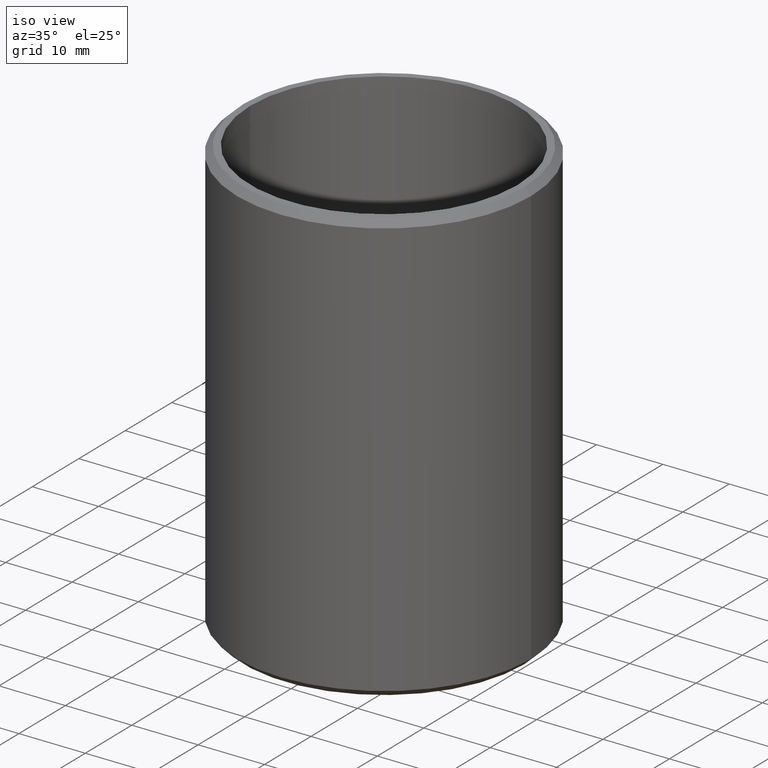
[diagram: clean part render]
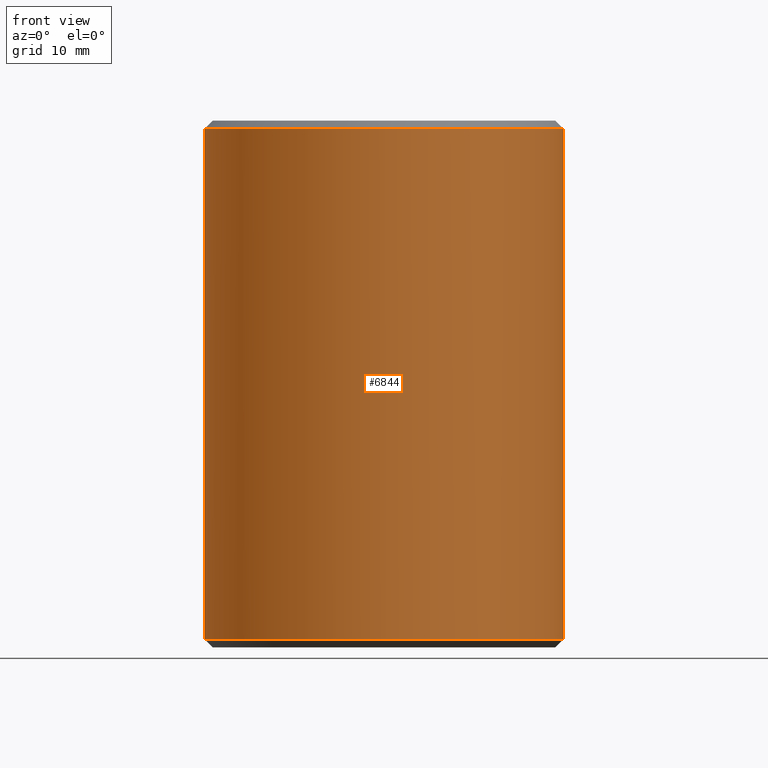
[diagram: tour spotlight — one face highlighted and labeled with its STEP entity id]
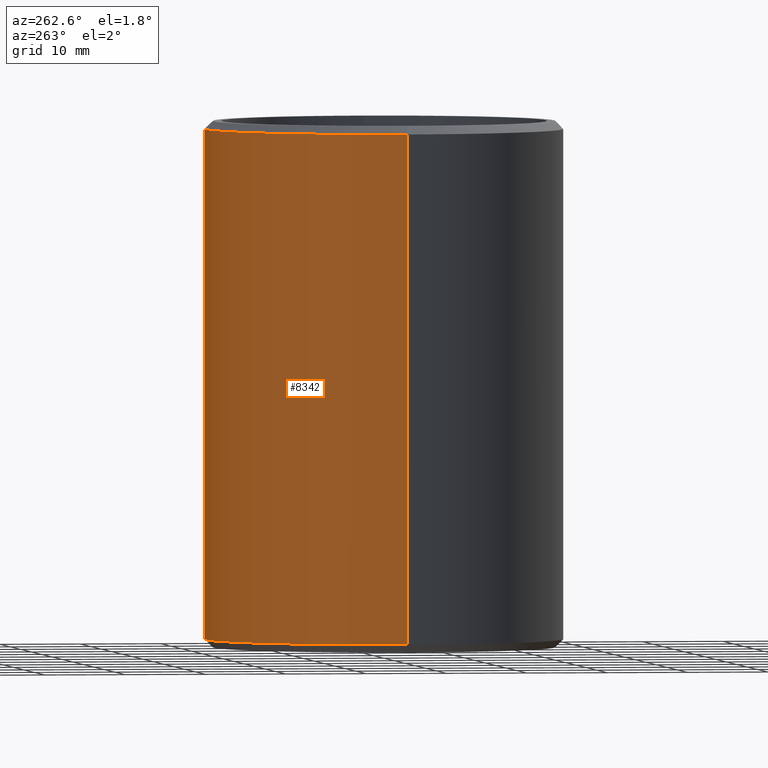
[diagram: tour spotlight — one face highlighted and labeled with its STEP entity id]
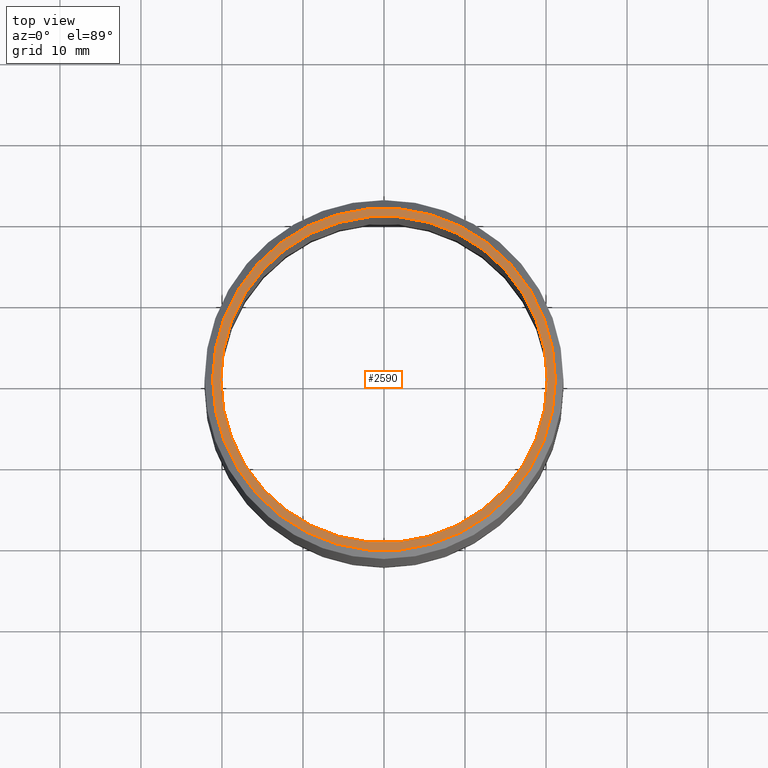
[diagram: tour spotlight — one face highlighted and labeled with its STEP entity id]
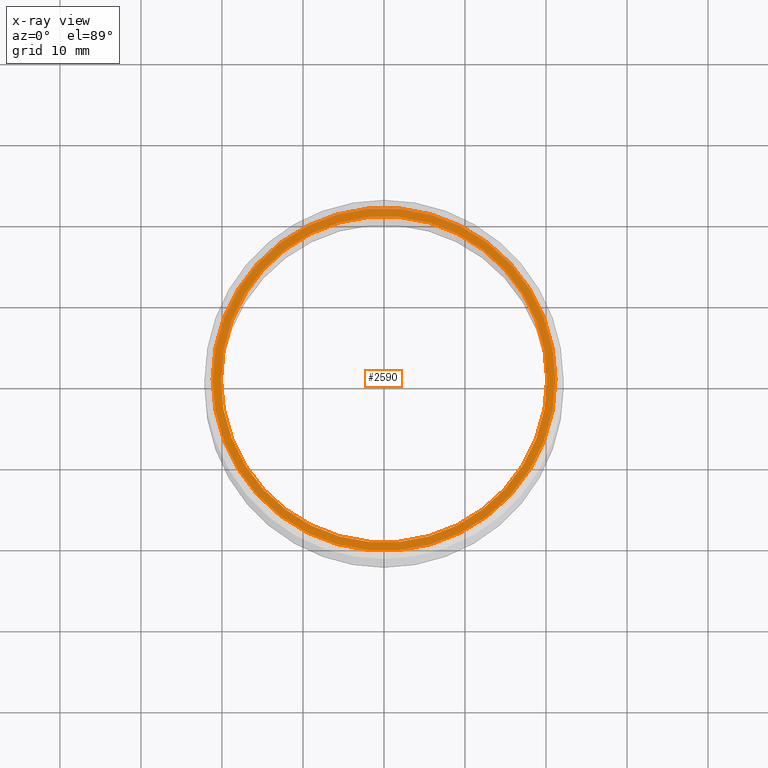
[diagram: x-ray of the same camera — body ghosted, this tour face saturated]
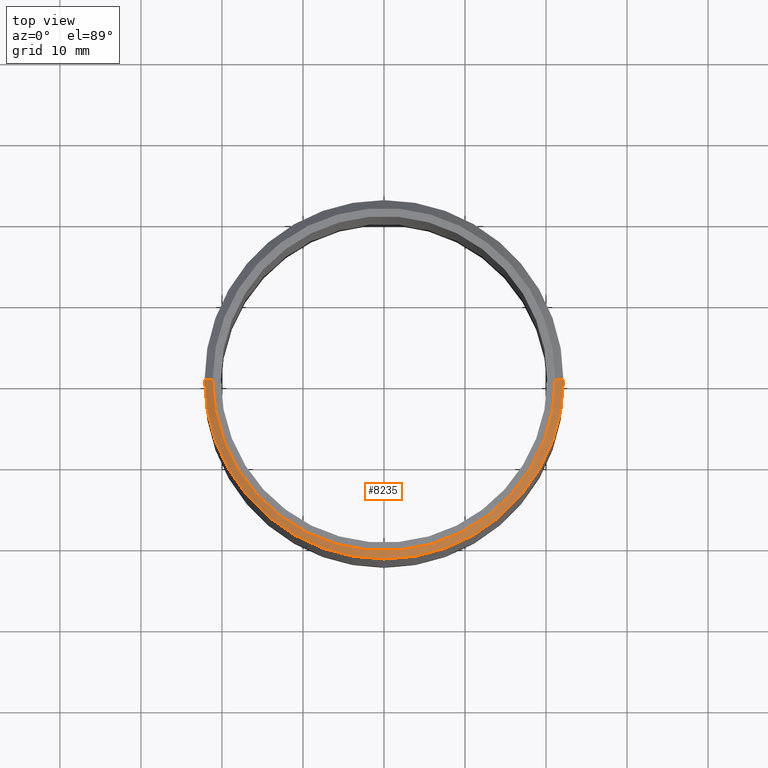
[diagram: tour spotlight — one face highlighted and labeled with its STEP entity id]
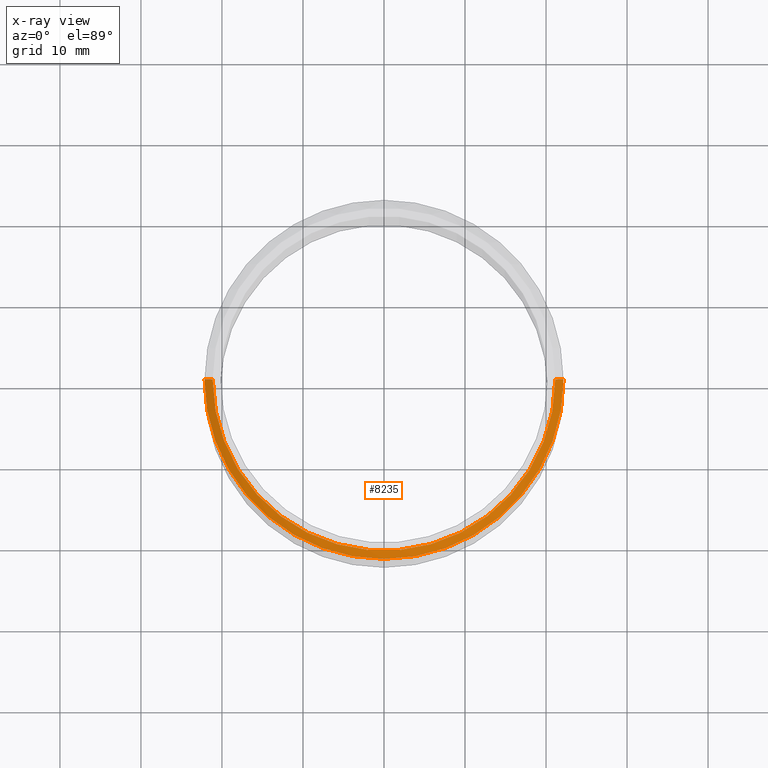
[diagram: x-ray of the same camera — body ghosted, this tour face saturated]
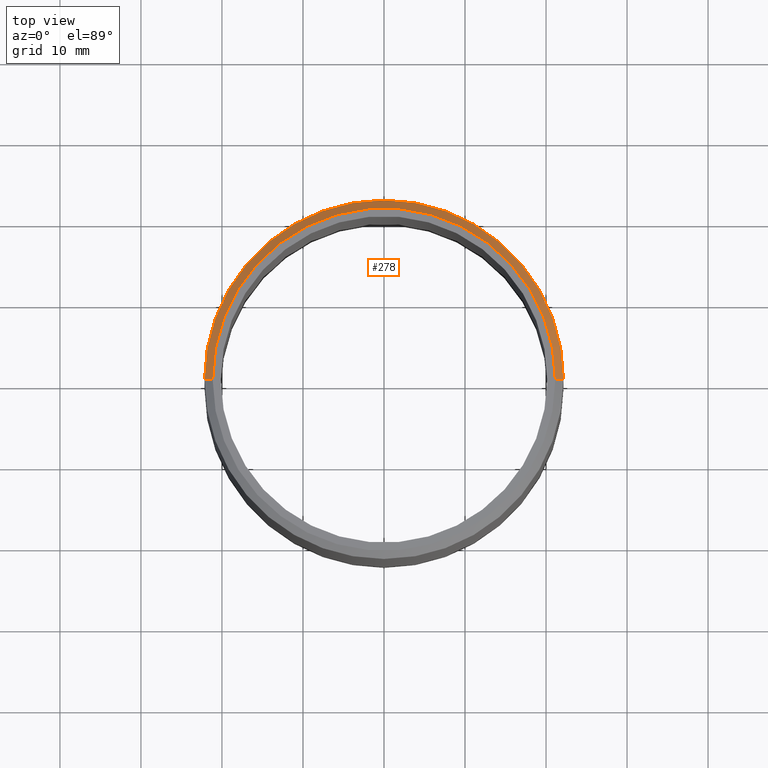
[diagram: tour spotlight — one face highlighted and labeled with its STEP entity id]
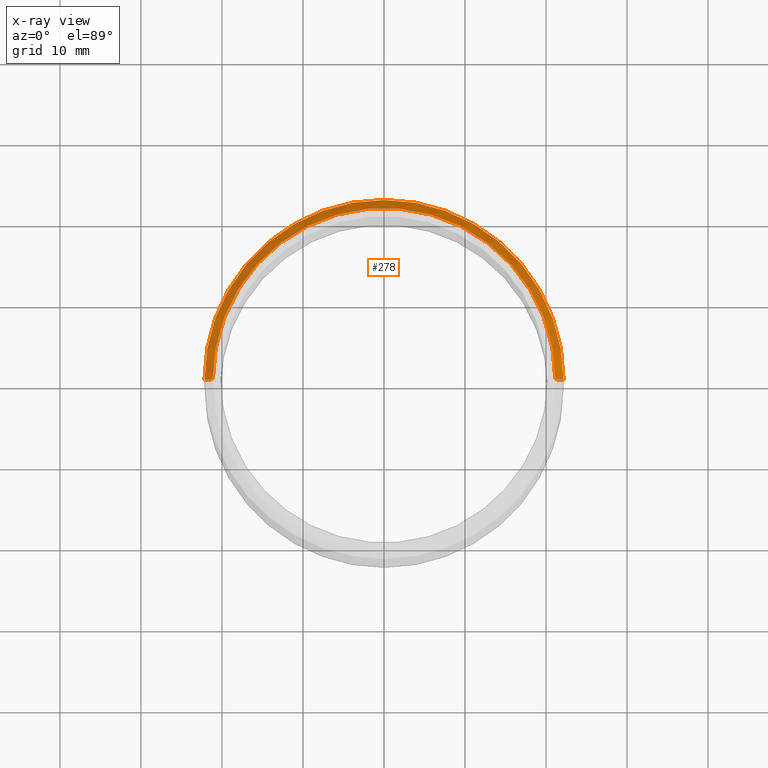
[diagram: x-ray of the same camera — body ghosted, this tour face saturated]
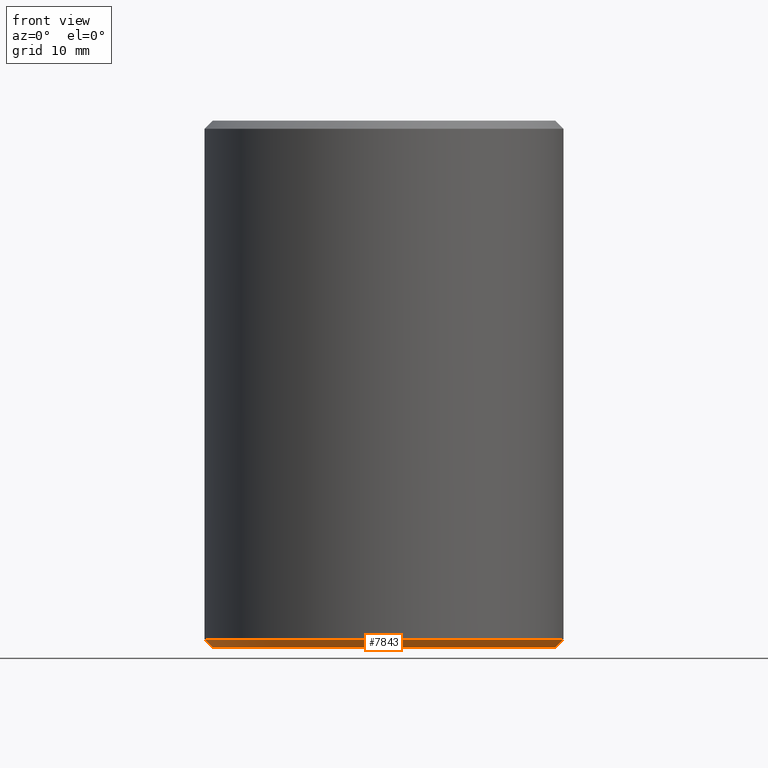
[diagram: tour spotlight — one face highlighted and labeled with its STEP entity id]
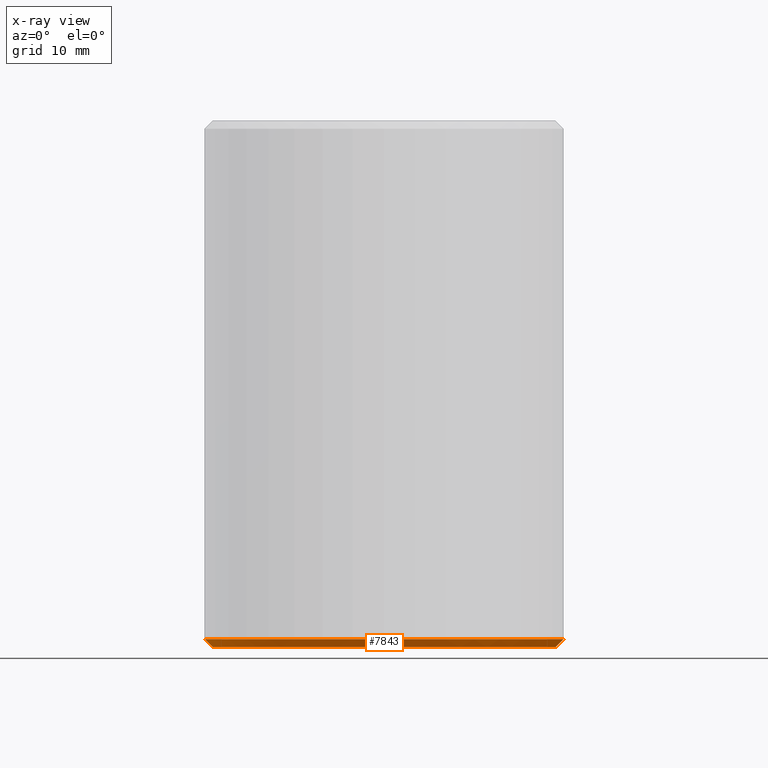
[diagram: x-ray of the same camera — body ghosted, this tour face saturated]
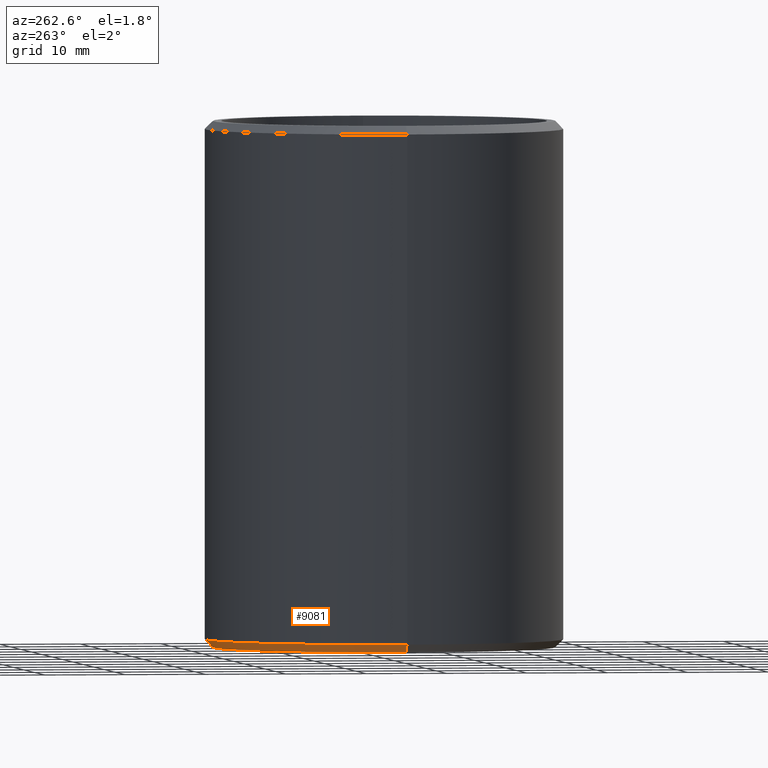
[diagram: tour spotlight — one face highlighted and labeled with its STEP entity id]
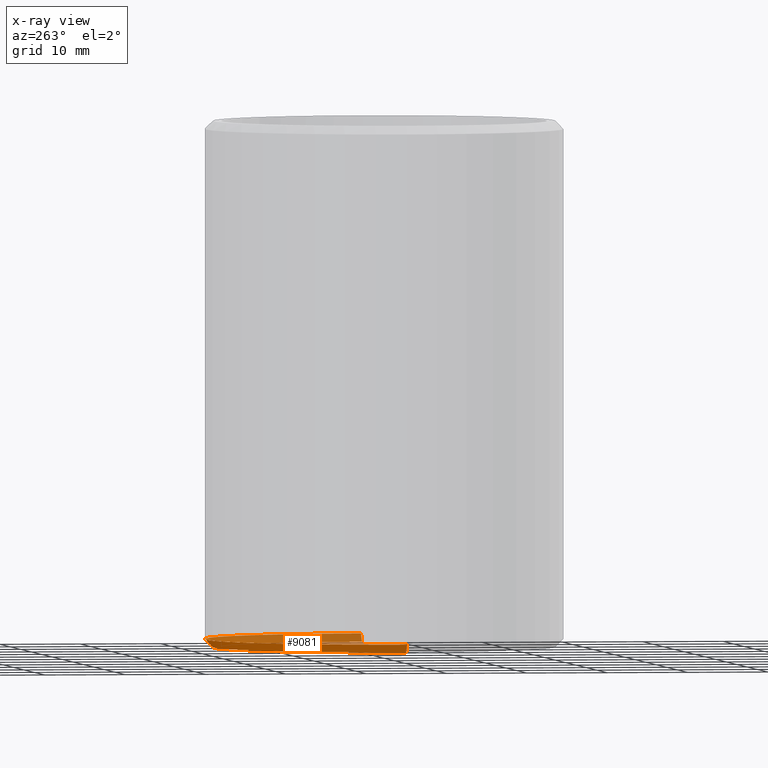
[diagram: x-ray of the same camera — body ghosted, this tour face saturated]
A machine part: a face-by-face anatomy tour. The part has 234 B-rep faces; the first image is the clean iso view, then the 7 largest visible faces are spotlighted one at a time (largest first), each with its STEP entity span.

Face 1 — front view, entity #6844. In plain terms, the highlighted cylindrical surface (partial cylindrical patch) has radius 22.15 mm, axis along (-0, -0, -1).
Definition (entity closure, byte-faithful):
#97 = AXIS2_PLACEMENT_3D ( 'NONE', #4437, #6090, #9283 ) ;
#524 = AXIS2_PLACEMENT_3D ( 'NONE', #9064, #4086, #2405 ) ;
#636 = AXIS2_PLACEMENT_3D ( 'NONE', #796, #1678, #5750 ) ;
#796 = CARTESIAN_POINT ( 'NONE',  ( 0.0000000000000000000, 0.0000000000000000000, 31.49999999999998600 ) ) ;
#1183 = ORIENTED_EDGE ( 'NONE', *, *, #7322, .F. ) ;
#1678 = DIRECTION ( 'NONE',  ( 0.0000000000000000000, 0.0000000000000000000, -1.000000000000000000 ) ) ;
#2405 = DIRECTION ( 'NONE',  ( 1.000000000000000000, 0.0000000000000000000, 0.0000000000000000000 ) ) ;
#2616 = VERTEX_POINT ( 'NONE', #8670 ) ;
#3067 = VERTEX_POINT ( 'NONE', #9025 ) ;
#3113 = EDGE_CURVE ( 'NONE', #2616, #9749, #6093, .T. ) ;
#3925 = ORIENTED_EDGE ( 'NONE', *, *, #9285, .T. ) ;
#3980 = ORIENTED_EDGE ( 'NONE', *, *, #3113, .T. ) ;
#4086 = DIRECTION ( 'NONE',  ( -0.0000000000000000000, -0.0000000000000000000, 1.000000000000000000 ) ) ;
#4221 = LINE ( 'NONE', #6624, #6166 ) ;
#4437 = CARTESIAN_POINT ( 'NONE',  ( 0.0000000000000000000, 0.0000000000000000000, 32.50000000000000000 ) ) ;
#4628 = CIRCLE ( 'NONE', #636, 22.14999999999999900 ) ;
#5643 = CYLINDRICAL_SURFACE ( 'NONE', #97, 22.14999999999999900 ) ;
#5750 = DIRECTION ( 'NONE',  ( 1.000000000000000000, 0.0000000000000000000, 0.0000000000000000000 ) ) ;
#6090 = DIRECTION ( 'NONE',  ( -0.0000000000000000000, -0.0000000000000000000, -1.000000000000000000 ) ) ;
#6093 = CIRCLE ( 'NONE', #524, 22.14999999999999900 ) ;
#6109 = CARTESIAN_POINT ( 'NONE',  ( 22.14999999999999900, 2.712592660111387200E-015, 32.50000000000000000 ) ) ;
#6166 = VECTOR ( 'NONE', #9914, 1000.000000000000000 ) ;
#6227 = ORIENTED_EDGE ( 'NONE', *, *, #7439, .T. ) ;
#6624 = CARTESIAN_POINT ( 'NONE',  ( -22.14999999999999900, 0.0000000000000000000, 32.50000000000000000 ) ) ;
#6844 = ADVANCED_FACE ( 'NONE', ( #8240 ), #5643, .T. ) ;
#6970 = LINE ( 'NONE', #6109, #9634 ) ;
#7322 = EDGE_CURVE ( 'NONE', #8617, #9749, #6970, .T. ) ;
#7439 = EDGE_CURVE ( 'NONE', #3067, #2616, #4221, .T. ) ;
#8216 = CARTESIAN_POINT ( 'NONE',  ( 22.14999999999999900, 2.712592660111387200E-015, 31.49999999999998600 ) ) ;
#8240 = FACE_OUTER_BOUND ( 'NONE', #8885, .T. ) ;
#8617 = VERTEX_POINT ( 'NONE', #8216 ) ;
#8670 = CARTESIAN_POINT ( 'NONE',  ( -22.14999999999999900, 0.0000000000000000000, -31.50000000000000000 ) ) ;
#8885 = EDGE_LOOP ( 'NONE', ( #1183, #3925, #6227, #3980 ) ) ;
#9025 = CARTESIAN_POINT ( 'NONE',  ( -22.14999999999999900, 0.0000000000000000000, 31.49999999999998600 ) ) ;
#9064 = CARTESIAN_POINT ( 'NONE',  ( 0.0000000000000000000, 0.0000000000000000000, -31.50000000000000000 ) ) ;
#9283 = DIRECTION ( 'NONE',  ( -1.000000000000000000, 0.0000000000000000000, 0.0000000000000000000 ) ) ;
#9285 = EDGE_CURVE ( 'NONE', #8617, #3067, #4628, .T. ) ;
#9634 = VECTOR ( 'NONE', #10212, 1000.000000000000000 ) ;
#9749 = VERTEX_POINT ( 'NONE', #9999 ) ;
#9914 = DIRECTION ( 'NONE',  ( -0.0000000000000000000, -0.0000000000000000000, -1.000000000000000000 ) ) ;
#9999 = CARTESIAN_POINT ( 'NONE',  ( 22.14999999999999900, 2.712592660111387200E-015, -31.50000000000000000 ) ) ;
#10212 = DIRECTION ( 'NONE',  ( -0.0000000000000000000, -0.0000000000000000000, -1.000000000000000000 ) ) ;

Face 2 — auxiliary view, entity #8342. In plain terms, the highlighted cylindrical surface (partial cylindrical patch) has radius 22.15 mm, axis along (-0, -0, -1).
Definition (entity closure, byte-faithful):
#84 = DIRECTION ( 'NONE',  ( -0.0000000000000000000, -0.0000000000000000000, 1.000000000000000000 ) ) ;
#928 = FACE_OUTER_BOUND ( 'NONE', #5469, .T. ) ;
#2616 = VERTEX_POINT ( 'NONE', #8670 ) ;
#2999 = ORIENTED_EDGE ( 'NONE', *, *, #7267, .T. ) ;
#3067 = VERTEX_POINT ( 'NONE', #9025 ) ;
#4221 = LINE ( 'NONE', #6624, #6166 ) ;
#4736 = DIRECTION ( 'NONE',  ( -0.0000000000000000000, -0.0000000000000000000, -1.000000000000000000 ) ) ;
#5469 = EDGE_LOOP ( 'NONE', ( #9270, #6454, #2999, #6067 ) ) ;
#5480 = CARTESIAN_POINT ( 'NONE',  ( 0.0000000000000000000, 0.0000000000000000000, 31.49999999999998600 ) ) ;
#5578 = EDGE_CURVE ( 'NONE', #3067, #8617, #7244, .T. ) ;
#6067 = ORIENTED_EDGE ( 'NONE', *, *, #7439, .F. ) ;
#6109 = CARTESIAN_POINT ( 'NONE',  ( 22.14999999999999900, 2.712592660111387200E-015, 32.50000000000000000 ) ) ;
#6166 = VECTOR ( 'NONE', #9914, 1000.000000000000000 ) ;
#6454 = ORIENTED_EDGE ( 'NONE', *, *, #7322, .T. ) ;
#6508 = AXIS2_PLACEMENT_3D ( 'NONE', #7145, #4736, #10519 ) ;
#6624 = CARTESIAN_POINT ( 'NONE',  ( -22.14999999999999900, 0.0000000000000000000, 32.50000000000000000 ) ) ;
#6970 = LINE ( 'NONE', #6109, #9634 ) ;
#7145 = CARTESIAN_POINT ( 'NONE',  ( 0.0000000000000000000, 0.0000000000000000000, 32.50000000000000000 ) ) ;
#7244 = CIRCLE ( 'NONE', #8950, 22.14999999999999900 ) ;
#7265 = DIRECTION ( 'NONE',  ( 1.000000000000000000, 0.0000000000000000000, 0.0000000000000000000 ) ) ;
#7267 = EDGE_CURVE ( 'NONE', #9749, #2616, #7984, .T. ) ;
#7322 = EDGE_CURVE ( 'NONE', #8617, #9749, #6970, .T. ) ;
#7439 = EDGE_CURVE ( 'NONE', #3067, #2616, #4221, .T. ) ;
#7571 = CARTESIAN_POINT ( 'NONE',  ( 0.0000000000000000000, 0.0000000000000000000, -31.50000000000000000 ) ) ;
#7678 = DIRECTION ( 'NONE',  ( 1.000000000000000000, 0.0000000000000000000, 0.0000000000000000000 ) ) ;
#7984 = CIRCLE ( 'NONE', #9657, 22.14999999999999900 ) ;
#8216 = CARTESIAN_POINT ( 'NONE',  ( 22.14999999999999900, 2.712592660111387200E-015, 31.49999999999998600 ) ) ;
#8342 = ADVANCED_FACE ( 'NONE', ( #928 ), #9355, .T. ) ;
#8617 = VERTEX_POINT ( 'NONE', #8216 ) ;
#8670 = CARTESIAN_POINT ( 'NONE',  ( -22.14999999999999900, 0.0000000000000000000, -31.50000000000000000 ) ) ;
#8950 = AXIS2_PLACEMENT_3D ( 'NONE', #5480, #9713, #7265 ) ;
#9025 = CARTESIAN_POINT ( 'NONE',  ( -22.14999999999999900, 0.0000000000000000000, 31.49999999999998600 ) ) ;
#9270 = ORIENTED_EDGE ( 'NONE', *, *, #5578, .T. ) ;
#9355 = CYLINDRICAL_SURFACE ( 'NONE', #6508, 22.14999999999999900 ) ;
#9634 = VECTOR ( 'NONE', #10212, 1000.000000000000000 ) ;
#9657 = AXIS2_PLACEMENT_3D ( 'NONE', #7571, #84, #7678 ) ;
#9713 = DIRECTION ( 'NONE',  ( 0.0000000000000000000, 0.0000000000000000000, -1.000000000000000000 ) ) ;
#9749 = VERTEX_POINT ( 'NONE', #9999 ) ;
#9914 = DIRECTION ( 'NONE',  ( -0.0000000000000000000, -0.0000000000000000000, -1.000000000000000000 ) ) ;
#9999 = CARTESIAN_POINT ( 'NONE',  ( 22.14999999999999900, 2.712592660111387200E-015, -31.50000000000000000 ) ) ;
#10212 = DIRECTION ( 'NONE',  ( -0.0000000000000000000, -0.0000000000000000000, -1.000000000000000000 ) ) ;
#10519 = DIRECTION ( 'NONE',  ( -1.000000000000000000, 0.0000000000000000000, 0.0000000000000000000 ) ) ;

Face 3 — top view, entity #2590. An x-ray twin of the same camera follows (body ghosted, this face saturated) — the face is partly hidden behind the body. In plain terms, the highlighted planar face has unit normal (0, 0, 1).
Definition (entity closure, byte-faithful):
#591 = ORIENTED_EDGE ( 'NONE', *, *, #3768, .T. ) ;
#597 = CARTESIAN_POINT ( 'NONE',  ( 0.0000000000000000000, 0.0000000000000000000, 32.50000000000000000 ) ) ;
#736 = CIRCLE ( 'NONE', #10193, 20.15000000000000200 ) ;
#1010 = DIRECTION ( 'NONE',  ( 0.0000000000000000000, 0.0000000000000000000, 1.000000000000000000 ) ) ;
#1266 = CARTESIAN_POINT ( 'NONE',  ( 0.0000000000000000000, 0.0000000000000000000, 32.50000000000000000 ) ) ;
#1397 = DIRECTION ( 'NONE',  ( 1.000000000000000000, 0.0000000000000000000, 0.0000000000000000000 ) ) ;
#1450 = ORIENTED_EDGE ( 'NONE', *, *, #4033, .T. ) ;
#1751 = EDGE_CURVE ( 'NONE', #6487, #5945, #9504, .T. ) ;
#2246 = AXIS2_PLACEMENT_3D ( 'NONE', #1266, #7013, #6252 ) ;
#2322 = EDGE_LOOP ( 'NONE', ( #10605, #7739 ) ) ;
#2535 = CIRCLE ( 'NONE', #6769, 21.14999999999997400 ) ;
#2551 = VERTEX_POINT ( 'NONE', #7889 ) ;
#2590 = ADVANCED_FACE ( 'NONE', ( #8853, #9492 ), #9594, .T. ) ;
#2639 = DIRECTION ( 'NONE',  ( 1.000000000000000000, 0.0000000000000000000, 0.0000000000000000000 ) ) ;
#2782 = DIRECTION ( 'NONE',  ( 0.0000000000000000000, 0.0000000000000000000, 1.000000000000000000 ) ) ;
#3481 = EDGE_CURVE ( 'NONE', #5945, #6487, #736, .T. ) ;
#3768 = EDGE_CURVE ( 'NONE', #5247, #2551, #2535, .T. ) ;
#3851 = CARTESIAN_POINT ( 'NONE',  ( -20.15000000000000200, 0.0000000000000000000, 32.50000000000000000 ) ) ;
#4033 = EDGE_CURVE ( 'NONE', #2551, #5247, #6211, .T. ) ;
#4559 = DIRECTION ( 'NONE',  ( 1.000000000000000000, 0.0000000000000000000, 0.0000000000000000000 ) ) ;
#4793 = EDGE_LOOP ( 'NONE', ( #591, #1450 ) ) ;
#5247 = VERTEX_POINT ( 'NONE', #9866 ) ;
#5844 = CARTESIAN_POINT ( 'NONE',  ( 0.0000000000000000000, 0.0000000000000000000, 32.50000000000000000 ) ) ;
#5945 = VERTEX_POINT ( 'NONE', #3851 ) ;
#6019 = CARTESIAN_POINT ( 'NONE',  ( 0.0000000000000000000, 0.0000000000000000000, 32.50000000000000000 ) ) ;
#6211 = CIRCLE ( 'NONE', #10123, 21.14999999999997400 ) ;
#6252 = DIRECTION ( 'NONE',  ( 1.000000000000000000, 0.0000000000000000000, -0.0000000000000000000 ) ) ;
#6487 = VERTEX_POINT ( 'NONE', #7044 ) ;
#6769 = AXIS2_PLACEMENT_3D ( 'NONE', #6019, #1010, #2639 ) ;
#7013 = DIRECTION ( 'NONE',  ( 0.0000000000000000000, 0.0000000000000000000, 1.000000000000000000 ) ) ;
#7044 = CARTESIAN_POINT ( 'NONE',  ( 20.15000000000000200, 2.467663300281916900E-015, 32.50000000000000000 ) ) ;
#7739 = ORIENTED_EDGE ( 'NONE', *, *, #1751, .F. ) ;
#7889 = CARTESIAN_POINT ( 'NONE',  ( 21.14999999999997400, 2.651360320154018500E-015, 32.50000000000000000 ) ) ;
#8611 = DIRECTION ( 'NONE',  ( 1.000000000000000000, 0.0000000000000000000, 0.0000000000000000000 ) ) ;
#8648 = CARTESIAN_POINT ( 'NONE',  ( 0.0000000000000000000, 0.0000000000000000000, 32.50000000000000000 ) ) ;
#8853 = FACE_OUTER_BOUND ( 'NONE', #4793, .T. ) ;
#9492 = FACE_BOUND ( 'NONE', #2322, .T. ) ;
#9498 = DIRECTION ( 'NONE',  ( 0.0000000000000000000, 0.0000000000000000000, 1.000000000000000000 ) ) ;
#9504 = CIRCLE ( 'NONE', #9695, 20.15000000000000200 ) ;
#9594 = PLANE ( 'NONE',  #2246 ) ;
#9611 = DIRECTION ( 'NONE',  ( 0.0000000000000000000, 0.0000000000000000000, 1.000000000000000000 ) ) ;
#9695 = AXIS2_PLACEMENT_3D ( 'NONE', #5844, #9498, #4559 ) ;
#9866 = CARTESIAN_POINT ( 'NONE',  ( -21.14999999999997400, 0.0000000000000000000, 32.50000000000000000 ) ) ;
#10123 = AXIS2_PLACEMENT_3D ( 'NONE', #8648, #2782, #8611 ) ;
#10193 = AXIS2_PLACEMENT_3D ( 'NONE', #597, #9611, #1397 ) ;
#10605 = ORIENTED_EDGE ( 'NONE', *, *, #3481, .F. ) ;

Face 4 — top view, entity #8235. An x-ray twin of the same camera follows (body ghosted, this face saturated) — the face is partly hidden behind the body. In plain terms, the highlighted conical surface has half-angle 45 deg.
Definition (entity closure, byte-faithful):
#636 = AXIS2_PLACEMENT_3D ( 'NONE', #796, #1678, #5750 ) ;
#720 = EDGE_CURVE ( 'NONE', #2551, #8617, #3592, .T. ) ;
#796 = CARTESIAN_POINT ( 'NONE',  ( 0.0000000000000000000, 0.0000000000000000000, 31.49999999999998600 ) ) ;
#1010 = DIRECTION ( 'NONE',  ( 0.0000000000000000000, 0.0000000000000000000, 1.000000000000000000 ) ) ;
#1678 = DIRECTION ( 'NONE',  ( 0.0000000000000000000, 0.0000000000000000000, -1.000000000000000000 ) ) ;
#1980 = LINE ( 'NONE', #6937, #4239 ) ;
#2535 = CIRCLE ( 'NONE', #6769, 21.14999999999997400 ) ;
#2551 = VERTEX_POINT ( 'NONE', #7889 ) ;
#2639 = DIRECTION ( 'NONE',  ( 1.000000000000000000, 0.0000000000000000000, 0.0000000000000000000 ) ) ;
#3067 = VERTEX_POINT ( 'NONE', #9025 ) ;
#3592 = LINE ( 'NONE', #5338, #5790 ) ;
#3709 = AXIS2_PLACEMENT_3D ( 'NONE', #4551, #10338, #6256 ) ;
#3768 = EDGE_CURVE ( 'NONE', #5247, #2551, #2535, .T. ) ;
#4239 = VECTOR ( 'NONE', #10194, 1000.000000000000000 ) ;
#4257 = ORIENTED_EDGE ( 'NONE', *, *, #3768, .F. ) ;
#4551 = CARTESIAN_POINT ( 'NONE',  ( 0.0000000000000000000, 0.0000000000000000000, 32.50000000000000000 ) ) ;
#4628 = CIRCLE ( 'NONE', #636, 22.14999999999999900 ) ;
#5247 = VERTEX_POINT ( 'NONE', #9866 ) ;
#5338 = CARTESIAN_POINT ( 'NONE',  ( 21.14999999999997400, 2.590127980196648900E-015, 32.50000000000000000 ) ) ;
#5694 = ORIENTED_EDGE ( 'NONE', *, *, #9285, .F. ) ;
#5750 = DIRECTION ( 'NONE',  ( 1.000000000000000000, 0.0000000000000000000, 0.0000000000000000000 ) ) ;
#5761 = ORIENTED_EDGE ( 'NONE', *, *, #720, .F. ) ;
#5790 = VECTOR ( 'NONE', #6182, 1000.000000000000000 ) ;
#5962 = EDGE_LOOP ( 'NONE', ( #5761, #4257, #8078, #5694 ) ) ;
#6019 = CARTESIAN_POINT ( 'NONE',  ( 0.0000000000000000000, 0.0000000000000000000, 32.50000000000000000 ) ) ;
#6182 = DIRECTION ( 'NONE',  ( 0.7071067811865512400, 8.659560562354978500E-017, -0.7071067811865439100 ) ) ;
#6256 = DIRECTION ( 'NONE',  ( -1.000000000000000000, 0.0000000000000000000, 0.0000000000000000000 ) ) ;
#6275 = CONICAL_SURFACE ( 'NONE', #3709, 21.14999999999997400, 0.7853981633974533900 ) ;
#6769 = AXIS2_PLACEMENT_3D ( 'NONE', #6019, #1010, #2639 ) ;
#6937 = CARTESIAN_POINT ( 'NONE',  ( -21.14999999999997400, 0.0000000000000000000, 32.50000000000000000 ) ) ;
#7889 = CARTESIAN_POINT ( 'NONE',  ( 21.14999999999997400, 2.651360320154018500E-015, 32.50000000000000000 ) ) ;
#8078 = ORIENTED_EDGE ( 'NONE', *, *, #9457, .T. ) ;
#8216 = CARTESIAN_POINT ( 'NONE',  ( 22.14999999999999900, 2.712592660111387200E-015, 31.49999999999998600 ) ) ;
#8235 = ADVANCED_FACE ( 'NONE', ( #8478 ), #6275, .T. ) ;
#8478 = FACE_OUTER_BOUND ( 'NONE', #5962, .T. ) ;
#8617 = VERTEX_POINT ( 'NONE', #8216 ) ;
#9025 = CARTESIAN_POINT ( 'NONE',  ( -22.14999999999999900, 0.0000000000000000000, 31.49999999999998600 ) ) ;
#9285 = EDGE_CURVE ( 'NONE', #8617, #3067, #4628, .T. ) ;
#9457 = EDGE_CURVE ( 'NONE', #5247, #3067, #1980, .T. ) ;
#9866 = CARTESIAN_POINT ( 'NONE',  ( -21.14999999999997400, 0.0000000000000000000, 32.50000000000000000 ) ) ;
#10194 = DIRECTION ( 'NONE',  ( -0.7071067811865512400, 0.0000000000000000000, -0.7071067811865439100 ) ) ;
#10338 = DIRECTION ( 'NONE',  ( 0.0000000000000000000, 0.0000000000000000000, -1.000000000000000000 ) ) ;

Face 5 — top view, entity #278. An x-ray twin of the same camera follows (body ghosted, this face saturated) — the face is partly hidden behind the body. In plain terms, the highlighted conical surface has half-angle 45 deg.
Definition (entity closure, byte-faithful):
#214 = FACE_OUTER_BOUND ( 'NONE', #10702, .T. ) ;
#278 = ADVANCED_FACE ( 'NONE', ( #214 ), #6061, .T. ) ;
#720 = EDGE_CURVE ( 'NONE', #2551, #8617, #3592, .T. ) ;
#1804 = ORIENTED_EDGE ( 'NONE', *, *, #9457, .F. ) ;
#1980 = LINE ( 'NONE', #6937, #4239 ) ;
#2080 = ORIENTED_EDGE ( 'NONE', *, *, #720, .T. ) ;
#2477 = DIRECTION ( 'NONE',  ( -1.000000000000000000, 0.0000000000000000000, 0.0000000000000000000 ) ) ;
#2551 = VERTEX_POINT ( 'NONE', #7889 ) ;
#2610 = ORIENTED_EDGE ( 'NONE', *, *, #4033, .F. ) ;
#2782 = DIRECTION ( 'NONE',  ( 0.0000000000000000000, 0.0000000000000000000, 1.000000000000000000 ) ) ;
#3067 = VERTEX_POINT ( 'NONE', #9025 ) ;
#3592 = LINE ( 'NONE', #5338, #5790 ) ;
#3613 = ORIENTED_EDGE ( 'NONE', *, *, #5578, .F. ) ;
#4033 = EDGE_CURVE ( 'NONE', #2551, #5247, #6211, .T. ) ;
#4234 = CARTESIAN_POINT ( 'NONE',  ( 0.0000000000000000000, 0.0000000000000000000, 32.50000000000000000 ) ) ;
#4239 = VECTOR ( 'NONE', #10194, 1000.000000000000000 ) ;
#5247 = VERTEX_POINT ( 'NONE', #9866 ) ;
#5338 = CARTESIAN_POINT ( 'NONE',  ( 21.14999999999997400, 2.590127980196648900E-015, 32.50000000000000000 ) ) ;
#5480 = CARTESIAN_POINT ( 'NONE',  ( 0.0000000000000000000, 0.0000000000000000000, 31.49999999999998600 ) ) ;
#5578 = EDGE_CURVE ( 'NONE', #3067, #8617, #7244, .T. ) ;
#5790 = VECTOR ( 'NONE', #6182, 1000.000000000000000 ) ;
#6061 = CONICAL_SURFACE ( 'NONE', #8526, 21.14999999999997400, 0.7853981633974533900 ) ;
#6182 = DIRECTION ( 'NONE',  ( 0.7071067811865512400, 8.659560562354978500E-017, -0.7071067811865439100 ) ) ;
#6211 = CIRCLE ( 'NONE', #10123, 21.14999999999997400 ) ;
#6937 = CARTESIAN_POINT ( 'NONE',  ( -21.14999999999997400, 0.0000000000000000000, 32.50000000000000000 ) ) ;
#7244 = CIRCLE ( 'NONE', #8950, 22.14999999999999900 ) ;
#7265 = DIRECTION ( 'NONE',  ( 1.000000000000000000, 0.0000000000000000000, 0.0000000000000000000 ) ) ;
#7550 = DIRECTION ( 'NONE',  ( 0.0000000000000000000, 0.0000000000000000000, -1.000000000000000000 ) ) ;
#7889 = CARTESIAN_POINT ( 'NONE',  ( 21.14999999999997400, 2.651360320154018500E-015, 32.50000000000000000 ) ) ;
#8216 = CARTESIAN_POINT ( 'NONE',  ( 22.14999999999999900, 2.712592660111387200E-015, 31.49999999999998600 ) ) ;
#8526 = AXIS2_PLACEMENT_3D ( 'NONE', #4234, #7550, #2477 ) ;
#8611 = DIRECTION ( 'NONE',  ( 1.000000000000000000, 0.0000000000000000000, 0.0000000000000000000 ) ) ;
#8617 = VERTEX_POINT ( 'NONE', #8216 ) ;
#8648 = CARTESIAN_POINT ( 'NONE',  ( 0.0000000000000000000, 0.0000000000000000000, 32.50000000000000000 ) ) ;
#8950 = AXIS2_PLACEMENT_3D ( 'NONE', #5480, #9713, #7265 ) ;
#9025 = CARTESIAN_POINT ( 'NONE',  ( -22.14999999999999900, 0.0000000000000000000, 31.49999999999998600 ) ) ;
#9457 = EDGE_CURVE ( 'NONE', #5247, #3067, #1980, .T. ) ;
#9713 = DIRECTION ( 'NONE',  ( 0.0000000000000000000, 0.0000000000000000000, -1.000000000000000000 ) ) ;
#9866 = CARTESIAN_POINT ( 'NONE',  ( -21.14999999999997400, 0.0000000000000000000, 32.50000000000000000 ) ) ;
#10123 = AXIS2_PLACEMENT_3D ( 'NONE', #8648, #2782, #8611 ) ;
#10194 = DIRECTION ( 'NONE',  ( -0.7071067811865512400, 0.0000000000000000000, -0.7071067811865439100 ) ) ;
#10702 = EDGE_LOOP ( 'NONE', ( #2610, #2080, #3613, #1804 ) ) ;

Face 6 — front view, entity #7843. An x-ray twin of the same camera follows (body ghosted, this face saturated) — the face is partly hidden behind the body. In plain terms, the highlighted conical surface has half-angle 45 deg.
Definition (entity closure, byte-faithful):
#524 = AXIS2_PLACEMENT_3D ( 'NONE', #9064, #4086, #2405 ) ;
#822 = EDGE_LOOP ( 'NONE', ( #6733, #3995, #1241, #9304 ) ) ;
#1241 = ORIENTED_EDGE ( 'NONE', *, *, #4716, .T. ) ;
#2308 = DIRECTION ( 'NONE',  ( 1.000000000000000000, 0.0000000000000000000, 0.0000000000000000000 ) ) ;
#2405 = DIRECTION ( 'NONE',  ( 1.000000000000000000, 0.0000000000000000000, 0.0000000000000000000 ) ) ;
#2616 = VERTEX_POINT ( 'NONE', #8670 ) ;
#2626 = LINE ( 'NONE', #7387, #2886 ) ;
#2886 = VECTOR ( 'NONE', #3924, 999.9999999999998900 ) ;
#2955 = AXIS2_PLACEMENT_3D ( 'NONE', #10473, #4691, #6181 ) ;
#3113 = EDGE_CURVE ( 'NONE', #2616, #9749, #6093, .T. ) ;
#3195 = VECTOR ( 'NONE', #5484, 999.9999999999998900 ) ;
#3399 = EDGE_CURVE ( 'NONE', #7941, #10236, #8782, .T. ) ;
#3682 = FACE_OUTER_BOUND ( 'NONE', #822, .T. ) ;
#3924 = DIRECTION ( 'NONE',  ( -0.7071067811865512400, 8.659560562354979700E-017, 0.7071067811865439100 ) ) ;
#3995 = ORIENTED_EDGE ( 'NONE', *, *, #3399, .F. ) ;
#4086 = DIRECTION ( 'NONE',  ( -0.0000000000000000000, -0.0000000000000000000, 1.000000000000000000 ) ) ;
#4093 = DIRECTION ( 'NONE',  ( -0.0000000000000000000, -0.0000000000000000000, 1.000000000000000000 ) ) ;
#4177 = CARTESIAN_POINT ( 'NONE',  ( -21.14999999999998800, 2.651360320154018900E-015, -32.50000000000000000 ) ) ;
#4691 = DIRECTION ( 'NONE',  ( -0.0000000000000000000, -0.0000000000000000000, -1.000000000000000000 ) ) ;
#4716 = EDGE_CURVE ( 'NONE', #7941, #9749, #5170, .T. ) ;
#4730 = CONICAL_SURFACE ( 'NONE', #7771, 22.14999999999999900, 0.7853981633974536100 ) ;
#5170 = LINE ( 'NONE', #7269, #3195 ) ;
#5484 = DIRECTION ( 'NONE',  ( 0.7071067811865512400, 0.0000000000000000000, 0.7071067811865439100 ) ) ;
#5903 = CARTESIAN_POINT ( 'NONE',  ( 21.14999999999998800, 0.0000000000000000000, -32.50000000000000000 ) ) ;
#6093 = CIRCLE ( 'NONE', #524, 22.14999999999999900 ) ;
#6181 = DIRECTION ( 'NONE',  ( 1.000000000000000000, 0.0000000000000000000, 0.0000000000000000000 ) ) ;
#6625 = EDGE_CURVE ( 'NONE', #10236, #2616, #2626, .T. ) ;
#6733 = ORIENTED_EDGE ( 'NONE', *, *, #6625, .F. ) ;
#7269 = CARTESIAN_POINT ( 'NONE',  ( 22.14999999999999900, 0.0000000000000000000, -31.50000000000000000 ) ) ;
#7387 = CARTESIAN_POINT ( 'NONE',  ( -22.14999999999999900, 2.712592660111387200E-015, -31.50000000000000000 ) ) ;
#7771 = AXIS2_PLACEMENT_3D ( 'NONE', #9750, #4093, #2308 ) ;
#7843 = ADVANCED_FACE ( 'NONE', ( #3682 ), #4730, .T. ) ;
#7941 = VERTEX_POINT ( 'NONE', #5903 ) ;
#8670 = CARTESIAN_POINT ( 'NONE',  ( -22.14999999999999900, 0.0000000000000000000, -31.50000000000000000 ) ) ;
#8782 = CIRCLE ( 'NONE', #2955, 21.14999999999998800 ) ;
#9064 = CARTESIAN_POINT ( 'NONE',  ( 0.0000000000000000000, 0.0000000000000000000, -31.50000000000000000 ) ) ;
#9304 = ORIENTED_EDGE ( 'NONE', *, *, #3113, .F. ) ;
#9749 = VERTEX_POINT ( 'NONE', #9999 ) ;
#9750 = CARTESIAN_POINT ( 'NONE',  ( 0.0000000000000000000, 0.0000000000000000000, -31.50000000000000000 ) ) ;
#9999 = CARTESIAN_POINT ( 'NONE',  ( 22.14999999999999900, 2.712592660111387200E-015, -31.50000000000000000 ) ) ;
#10236 = VERTEX_POINT ( 'NONE', #4177 ) ;
#10473 = CARTESIAN_POINT ( 'NONE',  ( 0.0000000000000000000, 0.0000000000000000000, -32.50000000000000000 ) ) ;

Face 7 — auxiliary view, entity #9081. An x-ray twin of the same camera follows (body ghosted, this face saturated) — the face is partly hidden behind the body. In plain terms, the highlighted conical surface has half-angle 45 deg.
Definition (entity closure, byte-faithful):
#84 = DIRECTION ( 'NONE',  ( -0.0000000000000000000, -0.0000000000000000000, 1.000000000000000000 ) ) ;
#215 = CONICAL_SURFACE ( 'NONE', #986, 22.14999999999999900, 0.7853981633974536100 ) ;
#516 = DIRECTION ( 'NONE',  ( 1.000000000000000000, 0.0000000000000000000, 0.0000000000000000000 ) ) ;
#986 = AXIS2_PLACEMENT_3D ( 'NONE', #7058, #6268, #516 ) ;
#1467 = CARTESIAN_POINT ( 'NONE',  ( 0.0000000000000000000, 0.0000000000000000000, -32.50000000000000000 ) ) ;
#1607 = EDGE_LOOP ( 'NONE', ( #5249, #2497, #3935, #8796 ) ) ;
#2426 = AXIS2_PLACEMENT_3D ( 'NONE', #1467, #10461, #7188 ) ;
#2497 = ORIENTED_EDGE ( 'NONE', *, *, #6625, .T. ) ;
#2616 = VERTEX_POINT ( 'NONE', #8670 ) ;
#2626 = LINE ( 'NONE', #7387, #2886 ) ;
#2886 = VECTOR ( 'NONE', #3924, 999.9999999999998900 ) ;
#3195 = VECTOR ( 'NONE', #5484, 999.9999999999998900 ) ;
#3924 = DIRECTION ( 'NONE',  ( -0.7071067811865512400, 8.659560562354979700E-017, 0.7071067811865439100 ) ) ;
#3935 = ORIENTED_EDGE ( 'NONE', *, *, #7267, .F. ) ;
#4177 = CARTESIAN_POINT ( 'NONE',  ( -21.14999999999998800, 2.651360320154018900E-015, -32.50000000000000000 ) ) ;
#4351 = CIRCLE ( 'NONE', #2426, 21.14999999999998800 ) ;
#4716 = EDGE_CURVE ( 'NONE', #7941, #9749, #5170, .T. ) ;
#5170 = LINE ( 'NONE', #7269, #3195 ) ;
#5249 = ORIENTED_EDGE ( 'NONE', *, *, #10466, .F. ) ;
#5484 = DIRECTION ( 'NONE',  ( 0.7071067811865512400, 0.0000000000000000000, 0.7071067811865439100 ) ) ;
#5903 = CARTESIAN_POINT ( 'NONE',  ( 21.14999999999998800, 0.0000000000000000000, -32.50000000000000000 ) ) ;
#6268 = DIRECTION ( 'NONE',  ( -0.0000000000000000000, -0.0000000000000000000, 1.000000000000000000 ) ) ;
#6625 = EDGE_CURVE ( 'NONE', #10236, #2616, #2626, .T. ) ;
#7058 = CARTESIAN_POINT ( 'NONE',  ( 0.0000000000000000000, 0.0000000000000000000, -31.50000000000000000 ) ) ;
#7188 = DIRECTION ( 'NONE',  ( 1.000000000000000000, 0.0000000000000000000, 0.0000000000000000000 ) ) ;
#7267 = EDGE_CURVE ( 'NONE', #9749, #2616, #7984, .T. ) ;
#7269 = CARTESIAN_POINT ( 'NONE',  ( 22.14999999999999900, 0.0000000000000000000, -31.50000000000000000 ) ) ;
#7387 = CARTESIAN_POINT ( 'NONE',  ( -22.14999999999999900, 2.712592660111387200E-015, -31.50000000000000000 ) ) ;
#7571 = CARTESIAN_POINT ( 'NONE',  ( 0.0000000000000000000, 0.0000000000000000000, -31.50000000000000000 ) ) ;
#7638 = FACE_OUTER_BOUND ( 'NONE', #1607, .T. ) ;
#7678 = DIRECTION ( 'NONE',  ( 1.000000000000000000, 0.0000000000000000000, 0.0000000000000000000 ) ) ;
#7941 = VERTEX_POINT ( 'NONE', #5903 ) ;
#7984 = CIRCLE ( 'NONE', #9657, 22.14999999999999900 ) ;
#8670 = CARTESIAN_POINT ( 'NONE',  ( -22.14999999999999900, 0.0000000000000000000, -31.50000000000000000 ) ) ;
#8796 = ORIENTED_EDGE ( 'NONE', *, *, #4716, .F. ) ;
#9081 = ADVANCED_FACE ( 'NONE', ( #7638 ), #215, .T. ) ;
#9657 = AXIS2_PLACEMENT_3D ( 'NONE', #7571, #84, #7678 ) ;
#9749 = VERTEX_POINT ( 'NONE', #9999 ) ;
#9999 = CARTESIAN_POINT ( 'NONE',  ( 22.14999999999999900, 2.712592660111387200E-015, -31.50000000000000000 ) ) ;
#10236 = VERTEX_POINT ( 'NONE', #4177 ) ;
#10461 = DIRECTION ( 'NONE',  ( -0.0000000000000000000, -0.0000000000000000000, -1.000000000000000000 ) ) ;
#10466 = EDGE_CURVE ( 'NONE', #10236, #7941, #4351, .T. ) ;